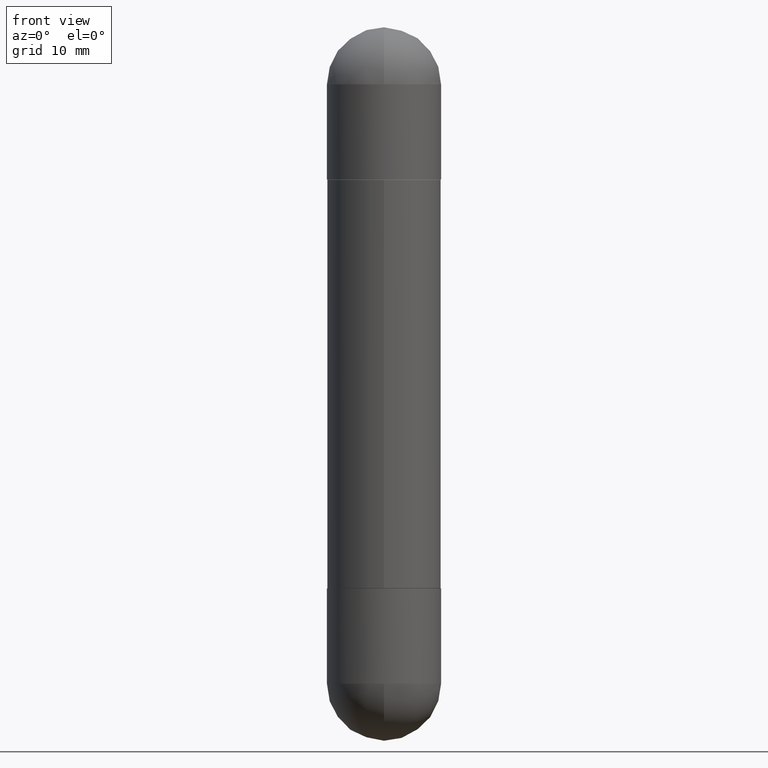
[diagram: clean part render]
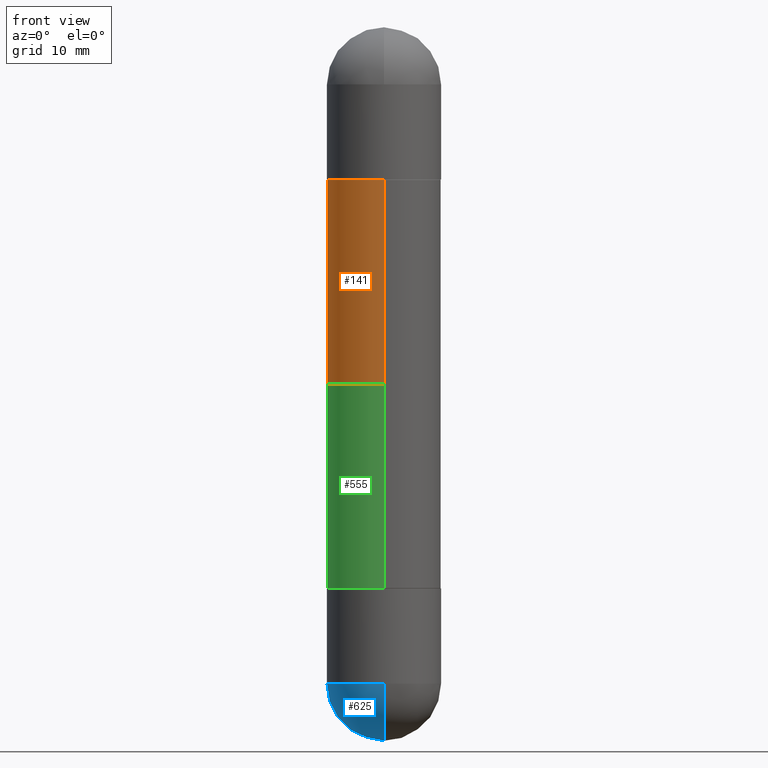
[diagram: same view with three faces highlighted in distinct colors, each labeled with its STEP entity id]
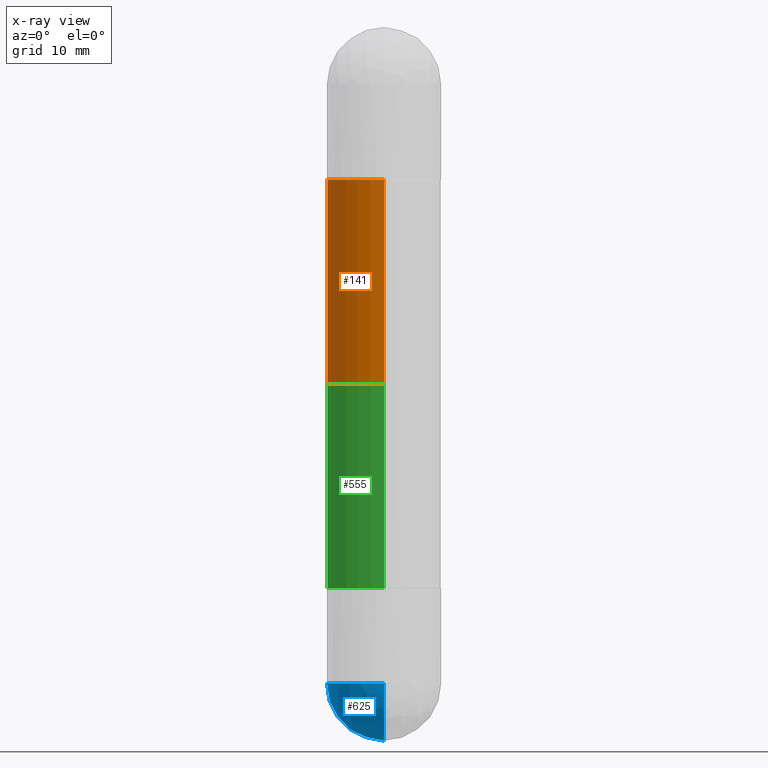
[diagram: x-ray of the same camera — body ghosted, the three highlighted faces saturated]
A machine part, front view with three faces highlighted in distinct colors.
The next image is the same camera in x-ray (body ghosted, the three faces saturated) — at least one of them is partly hidden behind the body in this view.
Their STEP definitions:

[orange] entity #141 — the highlighted cylindrical surface (partial cylindrical patch) has radius 5.9995 mm, axis along (-0, 0, -1).
#12 = CARTESIAN_POINT ( 'NONE',  ( 0.000000000000000000, 0.000000000000000000, -2.952799999999999869 ) ) ;
#52 = CARTESIAN_POINT ( 'NONE',  ( 1.620449627073636656E-15, 0.2362000000000001598, -2.952799999999998537 ) ) ;
#66 = ORIENTED_EDGE ( 'NONE', *, *, #447, .F. ) ;
#67 = DIRECTION ( 'NONE',  ( -2.444390095646794193E-29, 3.493026113730442947E-15, -1.000000000000000000 ) ) ;
#130 = DIRECTION ( 'NONE',  ( -2.444390095646794193E-29, 3.493026113730442947E-15, -1.000000000000000000 ) ) ;
#140 = DIRECTION ( 'NONE',  ( -6.982962677686265922E-15, -1.000000000000000000, -4.626330217890366181E-15 ) ) ;
#141 = ADVANCED_FACE ( 'NONE', ( #319 ), #515, .T. ) ;
#169 = VERTEX_POINT ( 'NONE', #453 ) ;
#188 = AXIS2_PLACEMENT_3D ( 'NONE', #280, #218, #755 ) ;
#205 = CARTESIAN_POINT ( 'NONE',  ( -1.649375784469497117E-15, -0.2362000000000001598, -2.952800000000000757 ) ) ;
#218 = DIRECTION ( 'NONE',  ( -0.000000000000000000, -0.000000000000000000, -1.000000000000000000 ) ) ;
#270 = EDGE_CURVE ( 'NONE', #169, #594, #305, .T. ) ;
#280 = CARTESIAN_POINT ( 'NONE',  ( 3.608897537212926545E-29, -5.157103754311625220E-15, -1.476399999999999935 ) ) ;
#302 = ORIENTED_EDGE ( 'NONE', *, *, #695, .F. ) ;
#305 = CIRCLE ( 'NONE', #188, 0.2362000000000001598 ) ;
#319 = FACE_OUTER_BOUND ( 'NONE', #345, .T. ) ;
#345 = EDGE_LOOP ( 'NONE', ( #302, #735, #472, #66 ) ) ;
#367 = VERTEX_POINT ( 'NONE', #566 ) ;
#395 = LINE ( 'NONE', #205, #519 ) ;
#404 = VECTOR ( 'NONE', #67, 39.37007874015748143 ) ;
#423 = EDGE_CURVE ( 'NONE', #560, #594, #636, .T. ) ;
#430 = AXIS2_PLACEMENT_3D ( 'NONE', #725, #599, #660 ) ;
#446 = CARTESIAN_POINT ( 'NONE',  ( 1.620449627073694243E-15, 0.2361999999999921385, -0.6308999999999992392 ) ) ;
#447 = EDGE_CURVE ( 'NONE', #367, #169, #395, .T. ) ;
#453 = CARTESIAN_POINT ( 'NONE',  ( -1.649375784469450574E-15, -0.2362000000000053224, -1.476399999999999935 ) ) ;
#472 = ORIENTED_EDGE ( 'NONE', *, *, #270, .F. ) ;
#515 = CYLINDRICAL_SURFACE ( 'NONE', #531, 0.2362000000000001598 ) ;
#519 = VECTOR ( 'NONE', #584, 39.37007874015748143 ) ;
#531 = AXIS2_PLACEMENT_3D ( 'NONE', #12, #130, #140 ) ;
#533 = CIRCLE ( 'NONE', #430, 0.2362000000000002709 ) ;
#560 = VERTEX_POINT ( 'NONE', #446 ) ;
#566 = CARTESIAN_POINT ( 'NONE',  ( -1.649375784469441108E-15, -0.2362000000000084032, -0.6309000000000009045 ) ) ;
#584 = DIRECTION ( 'NONE',  ( -2.444390095646794193E-29, 3.493026113730442947E-15, -1.000000000000000000 ) ) ;
#594 = VERTEX_POINT ( 'NONE', #647 ) ;
#599 = DIRECTION ( 'NONE',  ( 2.444390095646794193E-29, -3.493026113730442947E-15, 1.000000000000000000 ) ) ;
#636 = LINE ( 'NONE', #52, #404 ) ;
#647 = CARTESIAN_POINT ( 'NONE',  ( 1.620449627073693651E-15, 0.2361999999999950528, -1.476399999999999935 ) ) ;
#660 = DIRECTION ( 'NONE',  ( -6.982962677686265922E-15, -1.000000000000000000, -3.469747663417773058E-15 ) ) ;
#695 = EDGE_CURVE ( 'NONE', #560, #367, #533, .T. ) ;
#725 = CARTESIAN_POINT ( 'NONE',  ( 5.675629363082290113E-29, -8.110457333470714388E-15, -0.6309000000000001274 ) ) ;
#735 = ORIENTED_EDGE ( 'NONE', *, *, #423, .T. ) ;
#755 = DIRECTION ( 'NONE',  ( -1.000000000000000000, 0.000000000000000000, 0.000000000000000000 ) ) ;

[blue] entity #625 — the highlighted spherical surface has radius 5.9995 mm.
#15 = DIRECTION ( 'NONE',  ( -1.000000000000000000, 7.105427357601001070E-15, -4.926315508542082329E-29 ) ) ;
#62 = AXIS2_PLACEMENT_3D ( 'NONE', #355, #276, #791 ) ;
#84 = CARTESIAN_POINT ( 'NONE',  ( -1.678301941865292496E-15, -0.2362000000000098743, -2.716599999999997905 ) ) ;
#104 = CARTESIAN_POINT ( 'NONE',  ( 1.649375784469561606E-15, 0.2361999999999903899, -2.716600000000000126 ) ) ;
#111 = DIRECTION ( 'NONE',  ( -2.445468806185136597E-29, 3.491481338843145583E-15, 1.000000000000000000 ) ) ;
#115 = VERTEX_POINT ( 'NONE', #84 ) ;
#124 = CARTESIAN_POINT ( 'NONE',  ( 6.312240780968655053E-29, -9.959140573241337406E-15, -2.716599999999999682 ) ) ;
#125 = EDGE_CURVE ( 'NONE', #258, #260, #505, .T. ) ;
#159 = CIRCLE ( 'NONE', #364, 0.2361999999999999933 ) ;
#164 = CARTESIAN_POINT ( 'NONE',  ( 6.899960026864792464E-29, -1.076936538677815810E-14, -2.952799999999999869 ) ) ;
#171 = DIRECTION ( 'NONE',  ( 1.000000000000000000, -6.982962677686265922E-15, 4.883557194083112340E-29 ) ) ;
#196 = ORIENTED_EDGE ( 'NONE', *, *, #564, .T. ) ;
#217 = VERTEX_POINT ( 'NONE', #164 ) ;
#219 = SPHERICAL_SURFACE ( 'NONE', #62, 0.2362000000000002709 ) ;
#247 = CARTESIAN_POINT ( 'NONE',  ( 6.643360558882540179E-29, -9.484958205101285532E-15, -2.716599999999999238 ) ) ;
#258 = VERTEX_POINT ( 'NONE', #104 ) ;
#260 = VERTEX_POINT ( 'NONE', #476 ) ;
#276 = DIRECTION ( 'NONE',  ( -1.000000000000000000, 6.982962677686265922E-15, -4.883557194083112901E-29 ) ) ;
#299 = DIRECTION ( 'NONE',  ( 1.000000000000000000, -6.982962677686265133E-15, 0.000000000000000000 ) ) ;
#316 = ORIENTED_EDGE ( 'NONE', *, *, #397, .F. ) ;
#333 = DIRECTION ( 'NONE',  ( -2.445468806185136597E-29, 3.491481338843145583E-15, 1.000000000000000000 ) ) ;
#355 = CARTESIAN_POINT ( 'NONE',  ( 6.312240780968655053E-29, -9.959140573241337406E-15, -2.716599999999999682 ) ) ;
#364 = AXIS2_PLACEMENT_3D ( 'NONE', #247, #111, #299 ) ;
#385 = EDGE_CURVE ( 'NONE', #217, #258, #797, .T. ) ;
#397 = EDGE_CURVE ( 'NONE', #260, #115, #159, .T. ) ;
#415 = AXIS2_PLACEMENT_3D ( 'NONE', #701, #15, #454 ) ;
#429 = AXIS2_PLACEMENT_3D ( 'NONE', #124, #171, #633 ) ;
#454 = DIRECTION ( 'NONE',  ( -7.105427357601001070E-15, -1.000000000000000000, 0.000000000000000000 ) ) ;
#476 = CARTESIAN_POINT ( 'NONE',  ( -0.2361999999999999933, -7.119358161684659123E-15, -2.716599999999999238 ) ) ;
#505 = CIRCLE ( 'NONE', #617, 0.2361999999999999933 ) ;
#564 = EDGE_CURVE ( 'NONE', #217, #115, #632, .T. ) ;
#617 = AXIS2_PLACEMENT_3D ( 'NONE', #710, #333, #713 ) ;
#625 = ADVANCED_FACE ( 'NONE', ( #770 ), #219, .T. ) ;
#632 = CIRCLE ( 'NONE', #415, 0.2362000000000002709 ) ;
#633 = DIRECTION ( 'NONE',  ( 6.982962677686265922E-15, 1.000000000000000000, 0.000000000000000000 ) ) ;
#681 = ORIENTED_EDGE ( 'NONE', *, *, #125, .F. ) ;
#701 = CARTESIAN_POINT ( 'NONE',  ( 6.312240780968655053E-29, -9.959140573241337406E-15, -2.716599999999999682 ) ) ;
#710 = CARTESIAN_POINT ( 'NONE',  ( 6.643360558882540179E-29, -9.484958205101285532E-15, -2.716599999999999238 ) ) ;
#713 = DIRECTION ( 'NONE',  ( 1.000000000000000000, -6.982962677686265133E-15, 0.000000000000000000 ) ) ;
#743 = ORIENTED_EDGE ( 'NONE', *, *, #385, .F. ) ;
#747 = EDGE_LOOP ( 'NONE', ( #743, #196, #316, #681 ) ) ;
#770 = FACE_OUTER_BOUND ( 'NONE', #747, .T. ) ;
#791 = DIRECTION ( 'NONE',  ( 6.982962677686265922E-15, 1.000000000000000000, -4.626330217890364603E-15 ) ) ;
#797 = CIRCLE ( 'NONE', #429, 0.2362000000000002709 ) ;

[green] entity #555 — the highlighted cylindrical surface (partial cylindrical patch) has radius 5.9995 mm, axis along (-0, 0, -1).
#2 = CYLINDRICAL_SURFACE ( 'NONE', #669, 0.2362000000000001598 ) ;
#30 = AXIS2_PLACEMENT_3D ( 'NONE', #612, #616, #789 ) ;
#42 = VECTOR ( 'NONE', #623, 39.37007874015748143 ) ;
#45 = VERTEX_POINT ( 'NONE', #324 ) ;
#70 = DIRECTION ( 'NONE',  ( -2.444390095646794193E-29, 3.493026113730442947E-15, -1.000000000000000000 ) ) ;
#72 = CARTESIAN_POINT ( 'NONE',  ( 5.675629363082290113E-29, -8.110457333470714388E-15, -0.6309000000000001274 ) ) ;
#90 = CARTESIAN_POINT ( 'NONE',  ( 1.620449627073673141E-15, 0.2361999999999921385, -2.321900000000000297 ) ) ;
#95 = EDGE_CURVE ( 'NONE', #513, #45, #544, .T. ) ;
#116 = CARTESIAN_POINT ( 'NONE',  ( -1.649375784469497117E-15, -0.2362000000000001598, -2.952800000000000757 ) ) ;
#151 = VERTEX_POINT ( 'NONE', #90 ) ;
#168 = ORIENTED_EDGE ( 'NONE', *, *, #95, .F. ) ;
#193 = FACE_OUTER_BOUND ( 'NONE', #739, .T. ) ;
#195 = EDGE_CURVE ( 'NONE', #151, #338, #748, .T. ) ;
#198 = CARTESIAN_POINT ( 'NONE',  ( 1.620449627073694243E-15, 0.2361999999999921385, -0.6308999999999992392 ) ) ;
#207 = EDGE_CURVE ( 'NONE', #513, #151, #474, .T. ) ;
#251 = LINE ( 'NONE', #116, #42 ) ;
#324 = CARTESIAN_POINT ( 'NONE',  ( -1.649375784469441108E-15, -0.2362000000000084032, -0.6309000000000009045 ) ) ;
#329 = DIRECTION ( 'NONE',  ( -6.982962677686265922E-15, -1.000000000000000000, -3.469747663417773058E-15 ) ) ;
#338 = VERTEX_POINT ( 'NONE', #620 ) ;
#348 = VECTOR ( 'NONE', #657, 39.37007874015748143 ) ;
#421 = EDGE_CURVE ( 'NONE', #45, #338, #251, .T. ) ;
#470 = ORIENTED_EDGE ( 'NONE', *, *, #421, .F. ) ;
#474 = LINE ( 'NONE', #730, #348 ) ;
#513 = VERTEX_POINT ( 'NONE', #198 ) ;
#544 = CIRCLE ( 'NONE', #601, 0.2362000000000002709 ) ;
#555 = ADVANCED_FACE ( 'NONE', ( #193 ), #2, .T. ) ;
#576 = CARTESIAN_POINT ( 'NONE',  ( 0.000000000000000000, 0.000000000000000000, -2.952799999999999869 ) ) ;
#601 = AXIS2_PLACEMENT_3D ( 'NONE', #72, #650, #329 ) ;
#612 = CARTESIAN_POINT ( 'NONE',  ( 5.675629363082290113E-29, -8.110457333470714388E-15, -2.321899999999999409 ) ) ;
#616 = DIRECTION ( 'NONE',  ( -2.444390095646794193E-29, 3.493026113730442947E-15, 1.000000000000000000 ) ) ;
#620 = CARTESIAN_POINT ( 'NONE',  ( -1.649375784469441108E-15, -0.2362000000000084032, -2.321899999999998965 ) ) ;
#622 = ORIENTED_EDGE ( 'NONE', *, *, #207, .T. ) ;
#623 = DIRECTION ( 'NONE',  ( -2.444390095646794193E-29, 3.493026113730442947E-15, -1.000000000000000000 ) ) ;
#650 = DIRECTION ( 'NONE',  ( 2.444390095646794193E-29, -3.493026113730442947E-15, 1.000000000000000000 ) ) ;
#657 = DIRECTION ( 'NONE',  ( -2.444390095646794193E-29, 3.493026113730442947E-15, -1.000000000000000000 ) ) ;
#669 = AXIS2_PLACEMENT_3D ( 'NONE', #576, #70, #763 ) ;
#677 = ORIENTED_EDGE ( 'NONE', *, *, #195, .T. ) ;
#730 = CARTESIAN_POINT ( 'NONE',  ( 1.620449627073636656E-15, 0.2362000000000001598, -2.952799999999998537 ) ) ;
#739 = EDGE_LOOP ( 'NONE', ( #168, #622, #677, #470 ) ) ;
#748 = CIRCLE ( 'NONE', #30, 0.2362000000000002709 ) ;
#763 = DIRECTION ( 'NONE',  ( -6.982962677686265922E-15, -1.000000000000000000, -4.626330217890366181E-15 ) ) ;
#789 = DIRECTION ( 'NONE',  ( -6.982962677686265922E-15, -1.000000000000000000, 3.469747663417773058E-15 ) ) ;